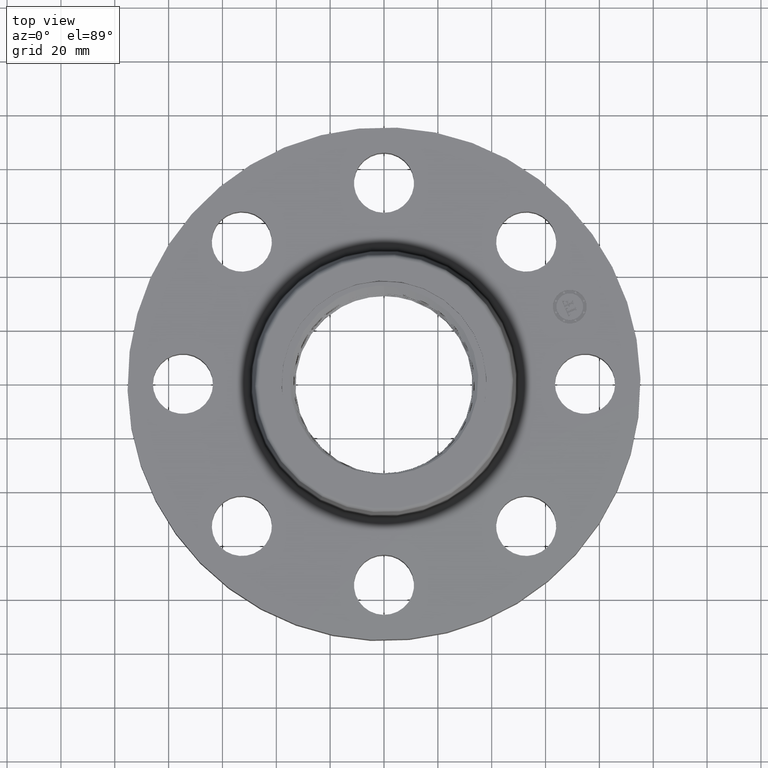
[diagram: clean part render]
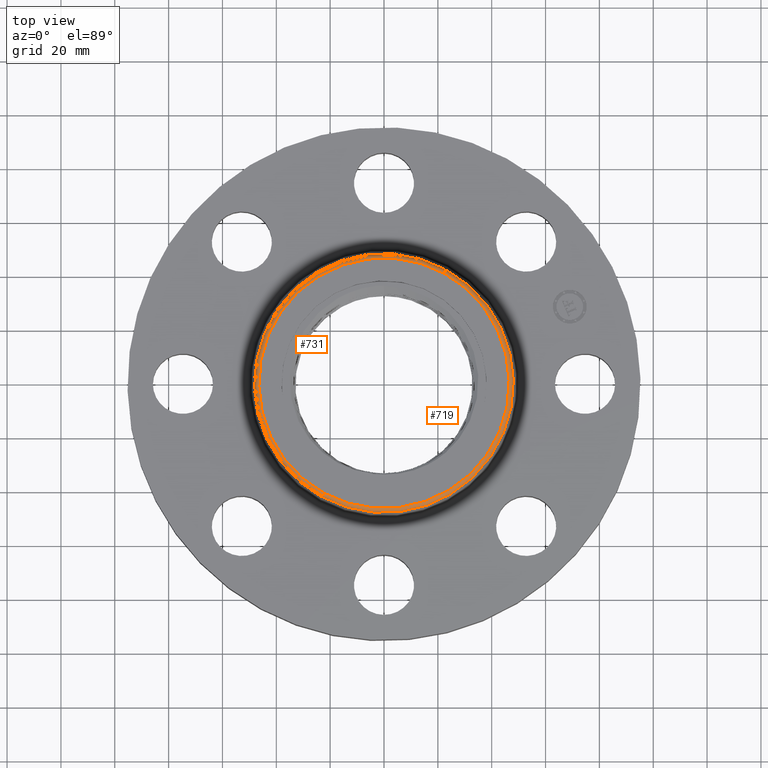
[diagram: same view with one multi-face feature highlighted, each face labeled with its STEP entity id]
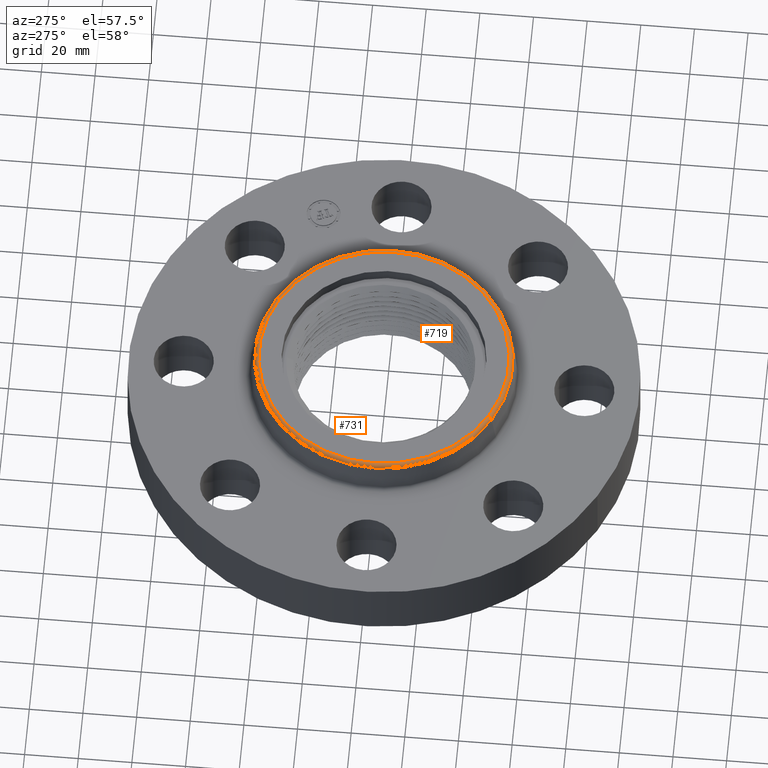
[diagram: same view with one multi-face feature highlighted, each face labeled with its STEP entity id]
A machine part, top view. The highlighted faces form ONE feature: a constant-radius fillet chain: 2 tangent blend faces with common blend radius 1.524 mm. The faces share edges in the B-rep.
A second angle (auxiliary view) of the same feature is appended — it is thin or edge-on in the first view.
Their STEP definitions:
[1] entity #719 (Torus):
#660=AXIS2_PLACEMENT_3D('Circle Axis2P3D',#658,#659,$) ;
#692=AXIS2_PLACEMENT_3D('Torus Axis2P3D',#689,#690,#691) ;
#696=AXIS2_PLACEMENT_3D('Circle Axis2P3D',#694,#695,$) ;
#703=AXIS2_PLACEMENT_3D('Circle Axis2P3D',#701,#702,$) ;
#710=AXIS2_PLACEMENT_3D('Circle Axis2P3D',#708,#709,$) ;
#655=CARTESIAN_POINT('Vertex',(0.906391853893,1.65913915961,1.39041889067)) ;
#658=CARTESIAN_POINT('Axis2P3D Location',(0.,0.,1.39041889067)) ;
#662=CARTESIAN_POINT('Vertex',(-0.906391853893,-1.65913915961,1.39041889067)) ;
#689=CARTESIAN_POINT('Axis2P3D Location',(0.,0.,1.38000000001)) ;
#694=CARTESIAN_POINT('Axis2P3D Location',(0.878063334648,1.60728415296,1.38000000001)) ;
#698=CARTESIAN_POINT('Vertex',(0.878063334648,1.60728415296,1.44000000001)) ;
#701=CARTESIAN_POINT('Axis2P3D Location',(0.,0.,1.44000000001)) ;
#705=CARTESIAN_POINT('Vertex',(-0.878063334648,-1.60728415296,1.44000000001)) ;
#708=CARTESIAN_POINT('Axis2P3D Location',(-0.878063334648,-1.60728415296,1.38000000001)) ;
#659=DIRECTION('Axis2P3D Direction',(0.,0.,-0.0393700787402)) ;
#690=DIRECTION('Axis2P3D Direction',(0.,0.,-0.0393700787402)) ;
#691=DIRECTION('Axis2P3D XDirection',(-0.0188750212049,-0.0345504945626,0.)) ;
#695=DIRECTION('Axis2P3D Direction',(-0.0345504945626,0.0188750212049,0.)) ;
#702=DIRECTION('Axis2P3D Direction',(0.,0.,-0.0393700787402)) ;
#709=DIRECTION('Axis2P3D Direction',(0.0345504945626,-0.0188750212049,0.)) ;
#714=ORIENTED_EDGE('',*,*,#664,.F.) ;
#715=ORIENTED_EDGE('',*,*,#700,.T.) ;
#716=ORIENTED_EDGE('',*,*,#707,.T.) ;
#717=ORIENTED_EDGE('',*,*,#712,.F.) ;
#719=ADVANCED_FACE('PartBody',(#718),#693,.T.) ;
#661=CIRCLE('generated circle',#660,1.89057899696) ;
#697=CIRCLE('generated circle',#696,0.0600000000002) ;
#704=CIRCLE('generated circle',#703,1.83149053178) ;
#711=CIRCLE('generated circle',#710,0.0600000000002) ;
#693=TOROIDAL_SURFACE('homeo Torus',#692,1.83149053178,0.0600000000002) ;
#664=EDGE_CURVE('',#656,#663,#661,.T.) ;
#700=EDGE_CURVE('',#656,#699,#697,.F.) ;
#707=EDGE_CURVE('',#699,#706,#704,.T.) ;
#712=EDGE_CURVE('',#663,#706,#711,.F.) ;
#713=EDGE_LOOP('',(#714,#715,#716,#717)) ;
#718=FACE_OUTER_BOUND('',#713,.T.) ;
#656=VERTEX_POINT('',#655) ;
#663=VERTEX_POINT('',#662) ;
#699=VERTEX_POINT('',#698) ;
#706=VERTEX_POINT('',#705) ;
[2] entity #731 (Torus):
#679=AXIS2_PLACEMENT_3D('Circle Axis2P3D',#677,#678,$) ;
#692=AXIS2_PLACEMENT_3D('Torus Axis2P3D',#689,#690,#691) ;
#696=AXIS2_PLACEMENT_3D('Circle Axis2P3D',#694,#695,$) ;
#710=AXIS2_PLACEMENT_3D('Circle Axis2P3D',#708,#709,$) ;
#722=AXIS2_PLACEMENT_3D('Circle Axis2P3D',#720,#721,$) ;
#655=CARTESIAN_POINT('Vertex',(0.906391853893,1.65913915961,1.39041889067)) ;
#662=CARTESIAN_POINT('Vertex',(-0.906391853893,-1.65913915961,1.39041889067)) ;
#677=CARTESIAN_POINT('Axis2P3D Location',(0.,0.,1.39041889067)) ;
#689=CARTESIAN_POINT('Axis2P3D Location',(0.,0.,1.38000000001)) ;
#694=CARTESIAN_POINT('Axis2P3D Location',(0.878063334648,1.60728415296,1.38000000001)) ;
#698=CARTESIAN_POINT('Vertex',(0.878063334648,1.60728415296,1.44000000001)) ;
#705=CARTESIAN_POINT('Vertex',(-0.878063334648,-1.60728415296,1.44000000001)) ;
#708=CARTESIAN_POINT('Axis2P3D Location',(-0.878063334648,-1.60728415296,1.38000000001)) ;
#720=CARTESIAN_POINT('Axis2P3D Location',(0.,0.,1.44000000001)) ;
#678=DIRECTION('Axis2P3D Direction',(0.,0.,-0.0393700787402)) ;
#690=DIRECTION('Axis2P3D Direction',(0.,0.,-0.0393700787402)) ;
#691=DIRECTION('Axis2P3D XDirection',(-0.0188750212049,-0.0345504945626,0.)) ;
#695=DIRECTION('Axis2P3D Direction',(-0.0345504945626,0.0188750212049,0.)) ;
#709=DIRECTION('Axis2P3D Direction',(0.0345504945626,-0.0188750212049,0.)) ;
#721=DIRECTION('Axis2P3D Direction',(0.,0.,-0.0393700787402)) ;
#726=ORIENTED_EDGE('',*,*,#681,.F.) ;
#727=ORIENTED_EDGE('',*,*,#712,.T.) ;
#728=ORIENTED_EDGE('',*,*,#724,.T.) ;
#729=ORIENTED_EDGE('',*,*,#700,.F.) ;
#731=ADVANCED_FACE('PartBody',(#730),#693,.T.) ;
#680=CIRCLE('generated circle',#679,1.89057899696) ;
#697=CIRCLE('generated circle',#696,0.0600000000002) ;
#711=CIRCLE('generated circle',#710,0.0600000000002) ;
#723=CIRCLE('generated circle',#722,1.83149053178) ;
#693=TOROIDAL_SURFACE('homeo Torus',#692,1.83149053178,0.0600000000002) ;
#681=EDGE_CURVE('',#663,#656,#680,.T.) ;
#700=EDGE_CURVE('',#656,#699,#697,.F.) ;
#712=EDGE_CURVE('',#663,#706,#711,.F.) ;
#724=EDGE_CURVE('',#706,#699,#723,.T.) ;
#725=EDGE_LOOP('',(#726,#727,#728,#729)) ;
#730=FACE_OUTER_BOUND('',#725,.T.) ;
#656=VERTEX_POINT('',#655) ;
#663=VERTEX_POINT('',#662) ;
#699=VERTEX_POINT('',#698) ;
#706=VERTEX_POINT('',#705) ;